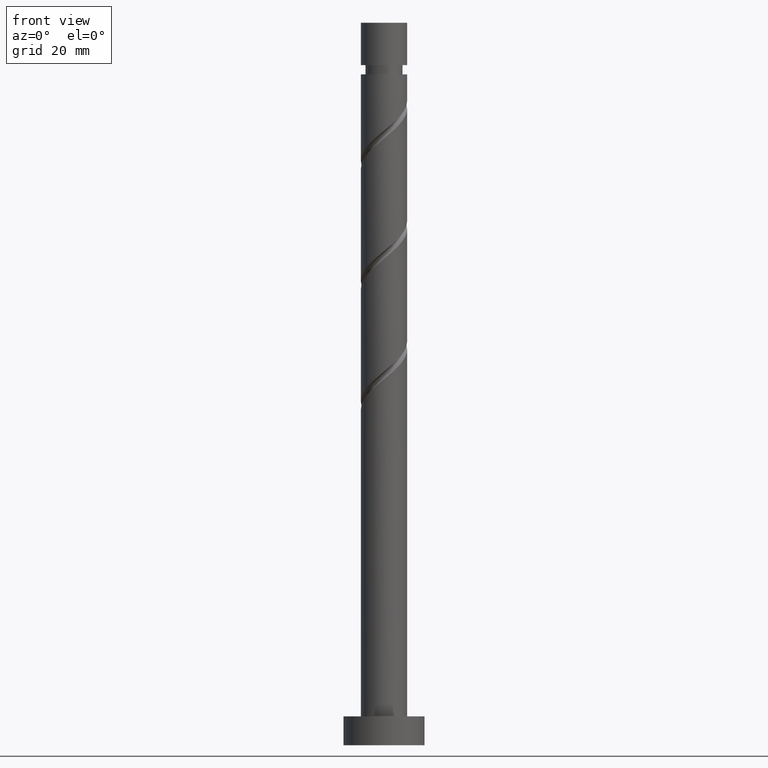
[diagram: clean part render]
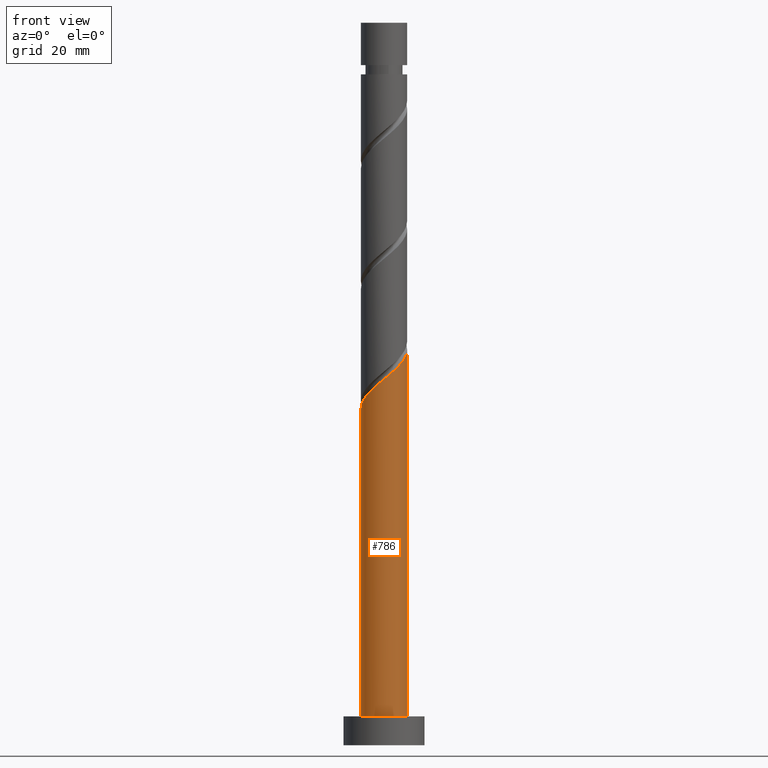
[diagram: same view with one face highlighted and labeled with its STEP entity id]
A machine part, front view. The second image highlights one B-rep face of the part: STEP entity #786.
In plain terms, the highlighted cylindrical surface (edge-blend (fillet) strip) has radius 4 mm, axis along (-0, -0, -1).
Its self-contained STEP definition (entity closure, byte-faithful):
#36 = ORIENTED_EDGE ( 'NONE', *, *, #1377, .T. ) ;
#42 = CARTESIAN_POINT ( 'NONE',  ( 3.376276034017707151, -2.236544262273469474, 66.59431801249276361 ) ) ;
#51 = CARTESIAN_POINT ( 'NONE',  ( -2.703475464551754914, -2.948087585633562213, 60.86515134582612774 ) ) ;
#67 = CARTESIAN_POINT ( 'NONE',  ( 4.000000000000005329, 2.698758500977031023E-15, 68.53368223768919165 ) ) ;
#79 = CARTESIAN_POINT ( 'NONE',  ( -3.170406666830038578, -2.519899137249415944, 60.34431801249278493 ) ) ;
#107 = CIRCLE ( 'NONE', #244, 4.000000000000000000 ) ;
#136 = VERTEX_POINT ( 'NONE', #584 ) ;
#175 = AXIS2_PLACEMENT_3D ( 'NONE', #855, #981, #1364 ) ;
#178 = CARTESIAN_POINT ( 'NONE',  ( -0.4543151893961436261, -3.974115965681424001, 62.94848467915949186 ) ) ;
#181 = CARTESIAN_POINT ( 'NONE',  ( -4.000000000000000000, 0.000000000000000000, 5.000000000000000000 ) ) ;
#244 = AXIS2_PLACEMENT_3D ( 'NONE', #1008, #269, #775 ) ;
#251 = DIRECTION ( 'NONE',  ( -0.000000000000000000, -0.000000000000000000, -1.000000000000000000 ) ) ;
#269 = DIRECTION ( 'NONE',  ( 0.000000000000000000, 0.000000000000000000, 1.000000000000000000 ) ) ;
#284 = CARTESIAN_POINT ( 'NONE',  ( 4.000000000000005329, 2.698758500977031023E-15, 68.53368223768919165 ) ) ;
#295 = CARTESIAN_POINT ( 'NONE',  ( 2.948087585633562213, -2.703475464551754914, 66.07348467915944923 ) ) ;
#300 = CARTESIAN_POINT ( 'NONE',  ( 3.902159508677979005, -1.083753322405400121, 67.63598467915944923 ) ) ;
#324 = DIRECTION ( 'NONE',  ( -0.000000000000000000, -0.000000000000000000, -1.000000000000000000 ) ) ;
#340 = EDGE_CURVE ( 'NONE', #1510, #1029, #1201, .T. ) ;
#372 = CYLINDRICAL_SURFACE ( 'NONE', #175, 4.000000000000000000 ) ;
#395 = CARTESIAN_POINT ( 'NONE',  ( 1.416856955757478609, -3.793927577315143740, 64.51098467915944923 ) ) ;
#404 = CARTESIAN_POINT ( 'NONE',  ( 4.000000000000004441, -0.2278949497857410134, 68.34417114848190522 ) ) ;
#413 = CARTESIAN_POINT ( 'NONE',  ( -4.000000000000006217, -3.238510201172437228E-15, 58.11701557102252735 ) ) ;
#462 = EDGE_CURVE ( 'NONE', #136, #1510, #546, .T. ) ;
#512 = CARTESIAN_POINT ( 'NONE',  ( -1.083753322405399677, -3.902159508677979005, 62.42765134582614195 ) ) ;
#520 = CARTESIAN_POINT ( 'NONE',  ( -4.000000000000007105, -0.4020151261036816748, 58.45132014643037621 ) ) ;
#540 = EDGE_LOOP ( 'NONE', ( #1429, #1140, #567, #36 ) ) ;
#546 =( BOUNDED_CURVE ( )  B_SPLINE_CURVE ( 2, ( #413, #520, #638, #656, #1148, #79, #51, #1038, #1407, #512, #178, #1511, #648, #395, #1019, #885, #295, #42, #896, #300, #1391, #404, #284 ),
 .UNSPECIFIED., .F., .T. ) 
 B_SPLINE_CURVE_WITH_KNOTS ( ( 3, 2, 2, 2, 2, 2, 2, 2, 2, 2, 2, 3 ),
 ( 0.05453220231385515204, 0.06250000000000000000, 0.07499999999999995559, 0.08750000000000002220, 0.09999999999999997780, 0.1125000000000000444, 0.1250000000000000000, 0.1374999999999999556, 0.1500000000000000222, 0.1624999999999999778, 0.1750000000000000444, 0.1795322023138550549 ),
 .UNSPECIFIED. ) 
 CURVE ( )  GEOMETRIC_REPRESENTATION_ITEM ( )  RATIONAL_B_SPLINE_CURVE ( ( 0.9039174447099396215, 0.9019565955404689195, 0.9090909090909172763, 0.8978984914501335624, 0.9090909090909172763, 0.8978984914501335624, 0.9090909090909172763, 0.8978984914501335624, 0.9090909090909172763, 0.8978984914501335624, 0.9090909090909172763, 0.8978984914501335624, 0.9090909090909172763, 0.8978984914501335624, 0.9090909090909172763, 0.8978984914501335624, 0.9090909090909172763, 0.8978984914501335624, 0.9090909090909172763, 0.8978984914501335624, 0.9090909090909172763, 0.9050328050005819192, 0.9039174447099397325 ) ) 
 REPRESENTATION_ITEM ( '' )  );
#567 = ORIENTED_EDGE ( 'NONE', *, *, #921, .T. ) ;
#579 = VECTOR ( 'NONE', #324, 1000.000000000000000 ) ;
#584 = CARTESIAN_POINT ( 'NONE',  ( -4.000000000000006217, -3.238510201172437228E-15, 58.11701557102252735 ) ) ;
#638 = CARTESIAN_POINT ( 'NONE',  ( -3.920000000000007034, -0.7959899496852961276, 58.78181801249279914 ) ) ;
#648 = CARTESIAN_POINT ( 'NONE',  ( 0.7959899496852957945, -3.920000000000007034, 63.99015134582614195 ) ) ;
#656 = CARTESIAN_POINT ( 'NONE',  ( -3.793927577315143740, -1.416856955757479053, 59.30265134582613484 ) ) ;
#775 = DIRECTION ( 'NONE',  ( 1.000000000000000000, 0.000000000000000000, 0.000000000000000000 ) ) ;
#786 = ADVANCED_FACE ( 'NONE', ( #1357 ), #372, .T. ) ;
#855 = CARTESIAN_POINT ( 'NONE',  ( 0.000000000000000000, 0.000000000000000000, 125.0000000000000000 ) ) ;
#882 = CARTESIAN_POINT ( 'NONE',  ( -4.000000000000000000, 0.000000000000000000, 125.0000000000000000 ) ) ;
#885 = CARTESIAN_POINT ( 'NONE',  ( 2.519899137249415499, -3.170406666830038578, 65.55265134582612063 ) ) ;
#896 = CARTESIAN_POINT ( 'NONE',  ( 3.639217771347843744, -1.660148792339434909, 67.11515134582613484 ) ) ;
#901 = LINE ( 'NONE', #882, #1145 ) ;
#921 = EDGE_CURVE ( 'NONE', #136, #1573, #901, .T. ) ;
#981 = DIRECTION ( 'NONE',  ( -0.000000000000000000, -0.000000000000000000, -1.000000000000000000 ) ) ;
#1008 = CARTESIAN_POINT ( 'NONE',  ( 0.000000000000000000, 0.000000000000000000, 5.000000000000000000 ) ) ;
#1019 = CARTESIAN_POINT ( 'NONE',  ( 1.968378046503447942, -3.482167122072593379, 65.03181801249280625 ) ) ;
#1029 = VERTEX_POINT ( 'NONE', #1424 ) ;
#1038 = CARTESIAN_POINT ( 'NONE',  ( -2.236544262273469030, -3.376276034017707151, 61.38598467915946344 ) ) ;
#1140 = ORIENTED_EDGE ( 'NONE', *, *, #462, .F. ) ;
#1145 = VECTOR ( 'NONE', #251, 1000.000000000000000 ) ;
#1148 = CARTESIAN_POINT ( 'NONE',  ( -3.482167122072593379, -1.968378046503447942, 59.82348467915947765 ) ) ;
#1201 = LINE ( 'NONE', #1341, #579 ) ;
#1341 = CARTESIAN_POINT ( 'NONE',  ( 4.000000000000000000, 4.898587196589412829E-16, 125.0000000000000000 ) ) ;
#1357 = FACE_OUTER_BOUND ( 'NONE', #540, .T. ) ;
#1364 = DIRECTION ( 'NONE',  ( -1.000000000000000000, 0.000000000000000000, 0.000000000000000000 ) ) ;
#1377 = EDGE_CURVE ( 'NONE', #1573, #1029, #107, .T. ) ;
#1391 = CARTESIAN_POINT ( 'NONE',  ( 3.974115965681424001, -0.4543151893961438481, 68.15681801249280625 ) ) ;
#1407 = CARTESIAN_POINT ( 'NONE',  ( -1.660148792339434909, -3.639217771347843744, 61.90681801249279204 ) ) ;
#1424 = CARTESIAN_POINT ( 'NONE',  ( 4.000000000000000000, 4.898587196589412829E-16, 5.000000000000000000 ) ) ;
#1429 = ORIENTED_EDGE ( 'NONE', *, *, #340, .F. ) ;
#1510 = VERTEX_POINT ( 'NONE', #67 ) ;
#1511 = CARTESIAN_POINT ( 'NONE',  ( 0.1751229436131123418, -4.046072422684866332, 63.46931801249279914 ) ) ;
#1573 = VERTEX_POINT ( 'NONE', #181 ) ;